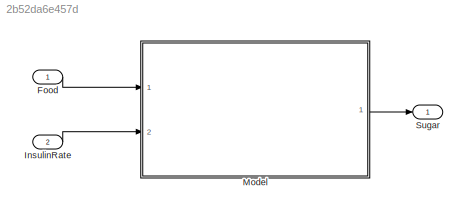
MODEL slx_2b52da6e457d
KIND model
CONFIG AbsTol = auto
CONFIG EnableMultiTasking = off
CONFIG FixedStep = auto
CONFIG MaxStep = auto
CONFIG MinStep = auto
CONFIG RelTol = 1e-3
CONFIG SampleTimeConstraint = Unconstrained
CONFIG Solver = VariableStepAuto
CONFIG SolverName = VariableStepAuto
CONFIG StartTime = 0.0
CONFIG StopTime = 24*60
WORKSPACE source: MAT-file member
WORKSPACE MCOS: class17 (value not decoded)
BLOCK [Inport] Food
  IconDisplay = Port number
BLOCK [Inport] InsulinRate
  IconDisplay = Port number
  Port = 2
BLOCK [ModelReference] Model
  CopyOfModelProtected = on
  ModelNameDialog = PatientModelOL.slxp
  ModelReferenceVersion = 1.386
  ParameterArgumentNames = params
  ParameterArgumentValues = params
  Ports = [2, 1]
  UsingDefaultArgumentValue = 0
BLOCK [Outport] Sugar
  IconDisplay = Port number
LINE Food:1 -> Model:1
LINE InsulinRate:1 -> Model:2
LINE Model:1 -> Sugar:1
